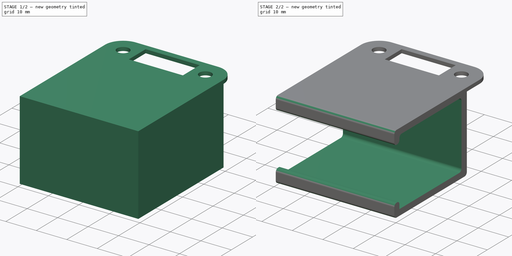
[diagram: build sequence overview — one tinted view per stage of 2, left to right]
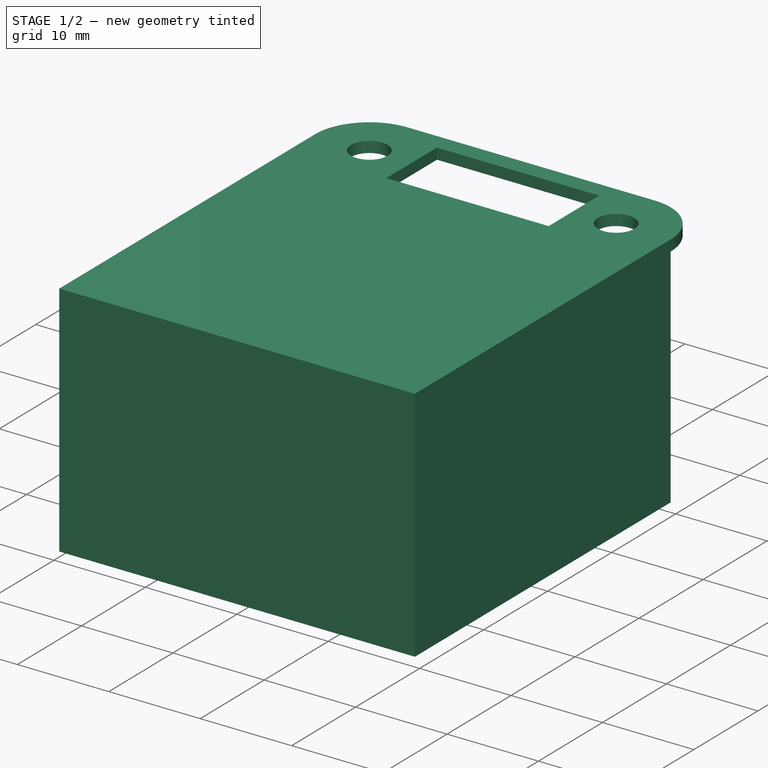
[diagram: stage 1 of 2 — iso view after this stage's code; geometry added in this stage tinted green]
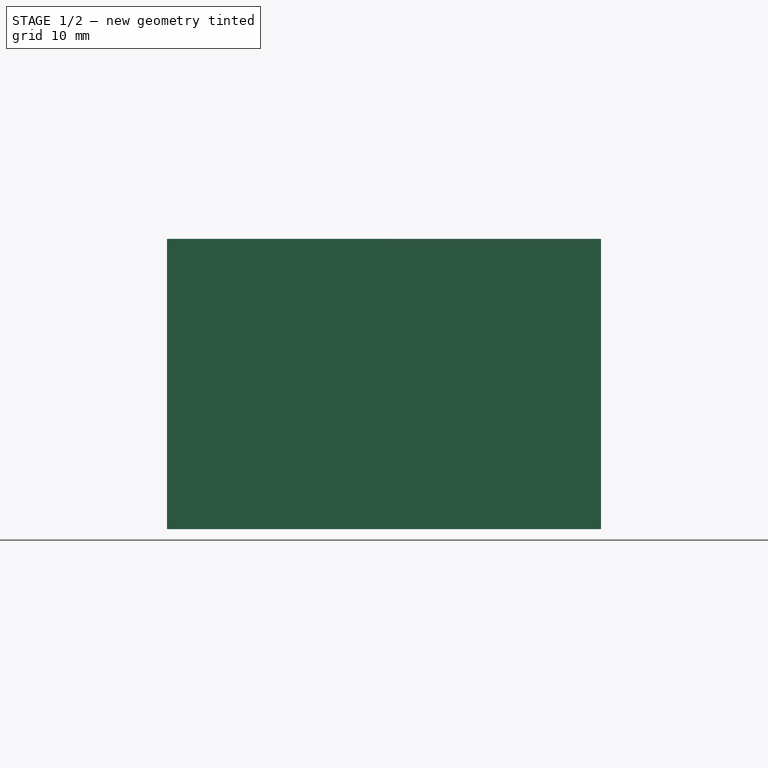
[diagram: stage 1 of 2 — front view after this stage's code; geometry added in this stage tinted green]
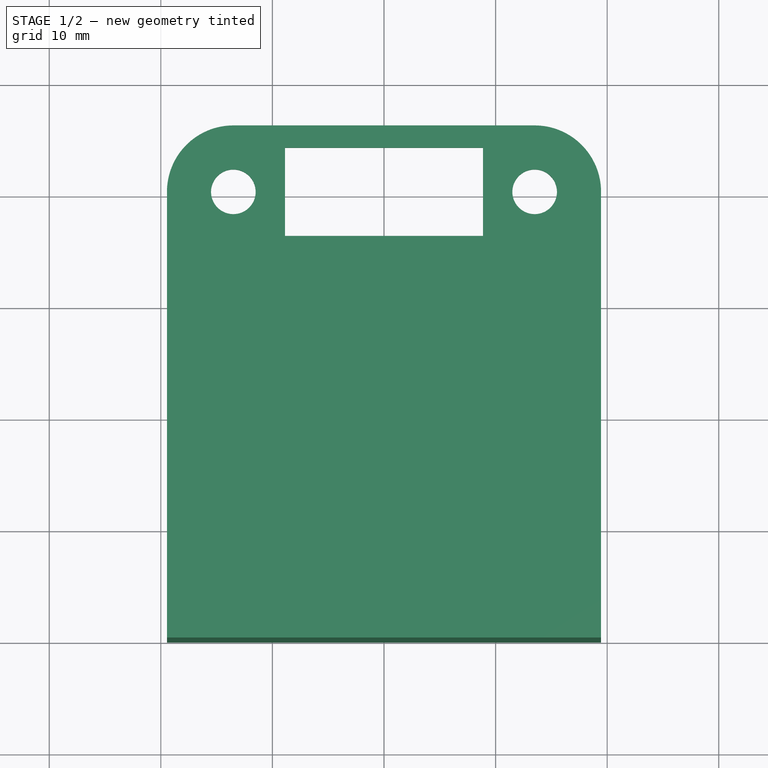
[diagram: stage 1 of 2 — top view after this stage's code; geometry added in this stage tinted green]
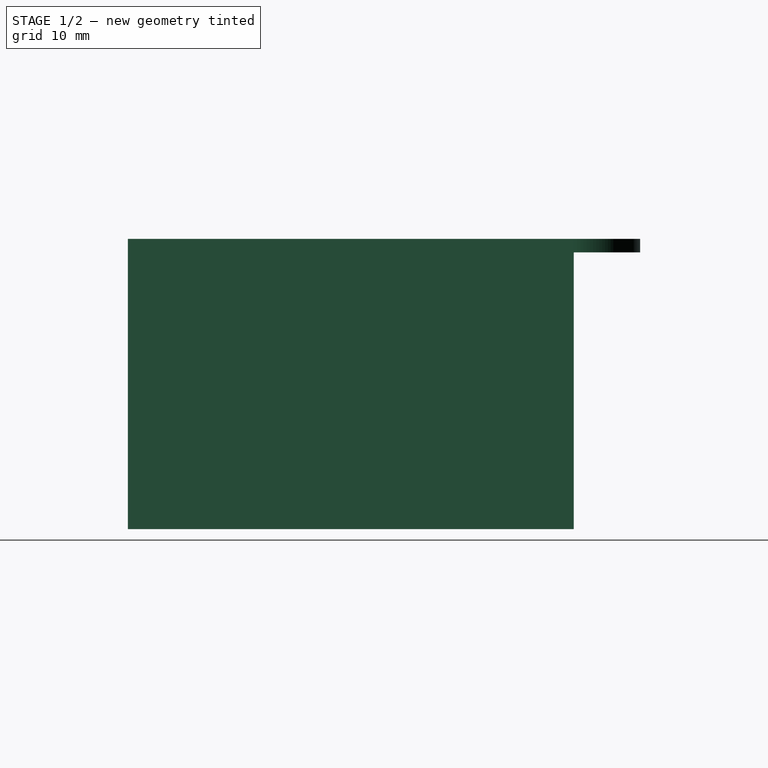
[diagram: stage 1 of 2 — right view after this stage's code; geometry added in this stage tinted green]
FCSTD DOCUMENT  (FreeCAD 1.0R39104 (Git))
Label: HDMI Mount
License: All rights reserved
LicenseURL: http://en.wikipedia.org/wiki/All_rights_reserved
objects: Sketcher::SketchObject×3, PartDesign::Pad×2, PartDesign::Pocket×1, PartDesign::Fillet×1, PartDesign::Body×1
note: 19 computed .brp shape members not serialized (recipe doc carries the construction recipe); baked Part::Feature solids carry a one-line shape summary decoded from their .brp

FEATURE [Sketcher::SketchObject] Sketch
  ArcFitTolerance = 1e-06
  AttachmentSupport = -> [XY_Plane]
  FullyConstrained = true
  MakeInternals = false
  MapMode = 5
  sketch-geometry (13):
    g0: Circle CenterX=-13.5 CenterY=0 CenterZ=0 NormalX=0 NormalY=0 NormalZ=1 AngleXU=0 Radius=2
    g1: Circle CenterX=13.5 CenterY=0 CenterZ=0 NormalX=0 NormalY=0 NormalZ=1 AngleXU=0 Radius=2
    g2: LineSegment [constr] StartX=-13.5 StartY=0 StartZ=0 EndX=13.5 EndY=0 EndZ=0
    g3: LineSegment StartX=-8.875 StartY=-3.95 StartZ=0 EndX=8.875 EndY=-3.95 EndZ=0
    g4: LineSegment StartX=8.875 StartY=-3.95 StartZ=0 EndX=8.875 EndY=3.95 EndZ=0
    g5: LineSegment StartX=8.875 StartY=3.95 StartZ=0 EndX=-8.875 EndY=3.95 EndZ=0
    g6: LineSegment StartX=-8.875 StartY=3.95 StartZ=0 EndX=-8.875 EndY=-3.95 EndZ=0
    g7: GeomPoint [constr] X=0 Y=0 Z=0
    g8: ArcOfCircle CenterX=-13.5 CenterY=0 CenterZ=0 NormalX=0 NormalY=0 NormalZ=1 AngleXU=0 Radius=5.95 StartAngle=1.5708 EndAngle=4.71239
    g9: ArcOfCircle CenterX=13.5 CenterY=0 CenterZ=0 NormalX=0 NormalY=0 NormalZ=1 AngleXU=0 Radius=5.95 StartAngle=4.71239 EndAngle=7.85398
    g10: LineSegment StartX=-13.5 StartY=5.95 StartZ=0 EndX=13.5 EndY=5.95 EndZ=0
    g11: LineSegment StartX=-13.5 StartY=-5.95 StartZ=0 EndX=13.5 EndY=-5.95 EndZ=0
    g12: LineSegment [constr] StartX=-8.875 StartY=3.95 StartZ=0 EndX=-8.875 EndY=5.95 EndZ=0
  constraints (30):
    c: Horizontal(g2)
    c: Symmetric(g2,g2,g-1)
    c: Coincident(g0,g2)
    c: Coincident(g2,g1)
    c: Equal(g0,g1)
    c: Diameter(g1) = 4
    c: Distance(g2) = 27
    c: Coincident(g3,g4)
    c: Coincident(g4,g5)
    c: Coincident(g5,g6)
    c: Coincident(g6,g3)
    c: Horizontal(g3)
    c: Horizontal(g5)
    c: Vertical(g4)
    c: Vertical(g6)
    c: Symmetric(g5,g3,g7)
    c: Distance(g4,g6) = 17.75
    c: Distance(g3,g5) = 7.9
    c: Coincident(g7,g-1)
    c: Tangent(g8,g10) = 1.5708
    c: Tangent(g8,g11) = -1.5708
    c: Tangent(g9,g10) = 1.5708
    c: Tangent(g9,g11) = -1.5708
    c: Equal(g8,g9)
    c: Coincident(g12,g5)
    c: PointOnObject(g12,g10)
    c: Vertical(g12)
    c: Distance(g12) = 2
    c: Coincident(g9,g1)
    c: Coincident(g0,g8)
FEATURE [PartDesign::Pad] Pad
  Direction = (0,0,1)
  Length = 1.2
  Length2 = 10
  Profile = -> Sketch
  ReferenceAxis = -> Sketch [N_Axis]
  Refine = true
  Suppressed = false
  Type = 0
FEATURE [Sketcher::SketchObject] Sketch001
  ArcFitTolerance = 1e-06
  AttachmentSupport = -> [Pad]
  ExternalGeometry = -> [Pad]
  FullyConstrained = true
  MakeInternals = false
  MapMode = 5
  Placement = pos=(0,0,1.2) rot=(0,0,1;0rad)
  sketch-geometry (7):
    g0: LineSegment StartX=-19.45 StartY=-7.669e-13 StartZ=0 EndX=-19.45 EndY=-39.95 EndZ=0
    g1: LineSegment StartX=-19.45 StartY=-39.95 StartZ=0 EndX=19.45 EndY=-39.95 EndZ=0
    g2: LineSegment StartX=19.45 StartY=-39.95 StartZ=0 EndX=19.45 EndY=0 EndZ=0
    g3: ArcOfCircle CenterX=-13.5 CenterY=-8.891e-13 CenterZ=0 NormalX=0 NormalY=0 NormalZ=1 AngleXU=0 Radius=5.95 StartAngle=3.14159 EndAngle=4.71239
    g4: ArcOfCircle CenterX=13.5 CenterY=1e-16 CenterZ=0 NormalX=0 NormalY=0 NormalZ=1 AngleXU=0 Radius=5.95 StartAngle=4.71239 EndAngle=6.28319
    g5: LineSegment StartX=-13.5 StartY=-5.95 StartZ=0 EndX=13.5 EndY=-5.95 EndZ=0
    g6: LineSegment [constr] StartX=-13.5 StartY=-5.95 StartZ=0 EndX=-13.5 EndY=-39.95 EndZ=0
  constraints (17):
    c: Coincident(g1,g0)
    c: Horizontal(g1)
    c: Coincident(g2,g1)
    c: Vertical(g2)
    c: Vertical(g0)
    c: Tangent(g2,g-4) = -1.5708
    c: Tangent(g0,g-3) = -1.5708
    c: Coincident(g3,g0)
    c: Tangent(g3,g-3) = -1.5708
    c: Tangent(g4,g-4) = -1.5708
    c: Coincident(g4,g2)
    c: Coincident(g5,g3)
    c: Coincident(g5,g4)
    c: Coincident(g6,g3)
    c: PointOnObject(g6,g1)
    c: Vertical(g6)
    c: Distance(g6) = 34
FEATURE [PartDesign::Pad] Pad001
  BaseFeature = -> Pad
  Direction = (0,0,1)
  Length = 26
  Length2 = 10
  Profile = -> Sketch001
  ReferenceAxis = -> Sketch001 [N_Axis]
  Refine = true
  Reversed = true
  Suppressed = false
  Type = 0
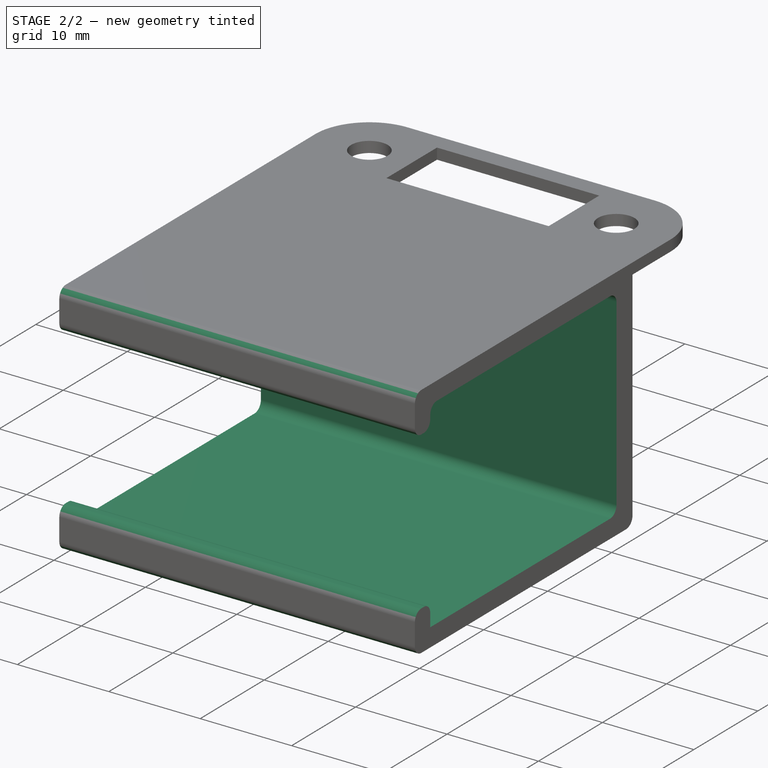
[diagram: stage 2 of 2 — iso view after this stage's code; geometry added in this stage tinted green]
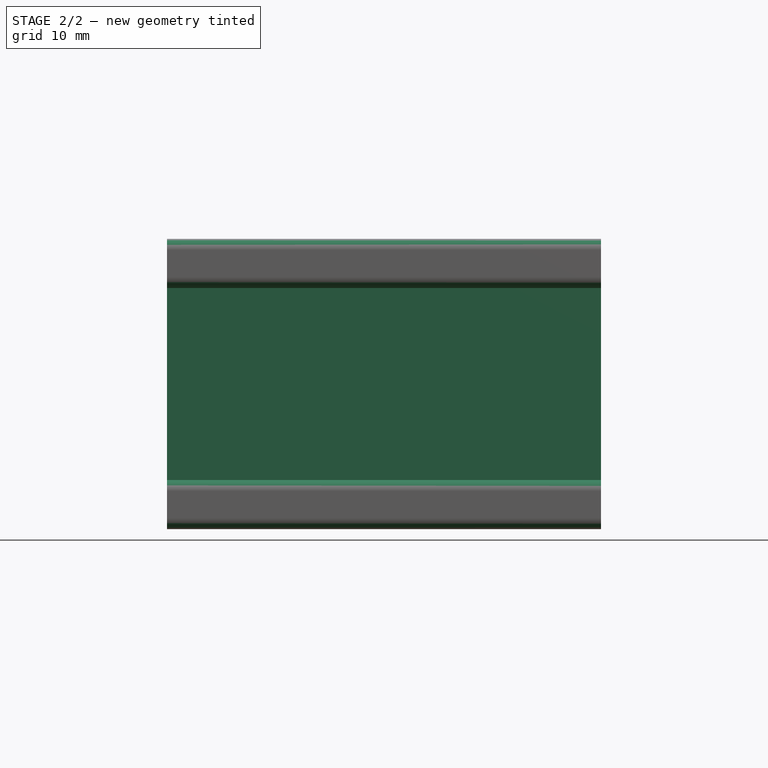
[diagram: stage 2 of 2 — front view after this stage's code; geometry added in this stage tinted green]
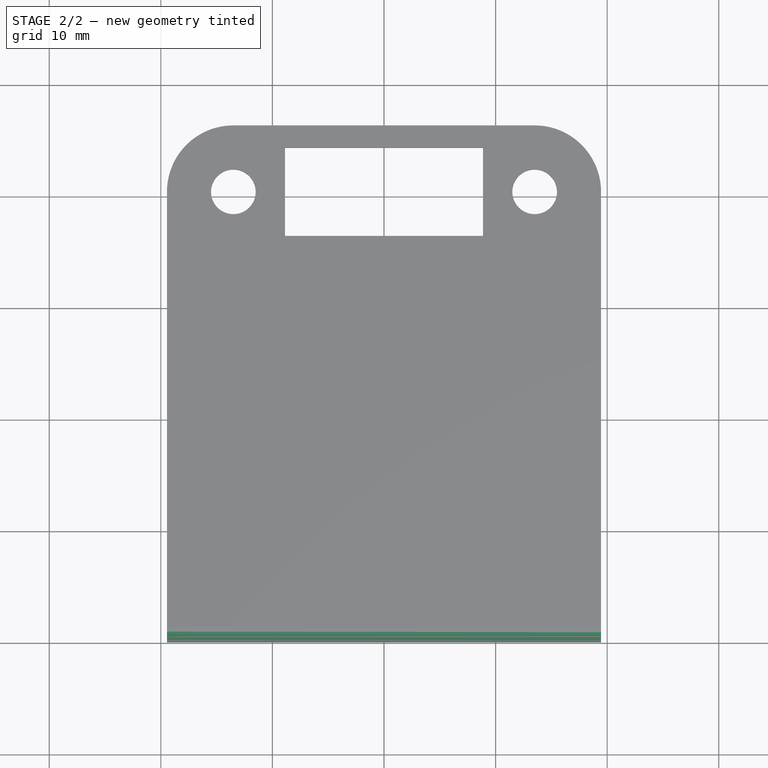
[diagram: stage 2 of 2 — top view after this stage's code; geometry added in this stage tinted green]
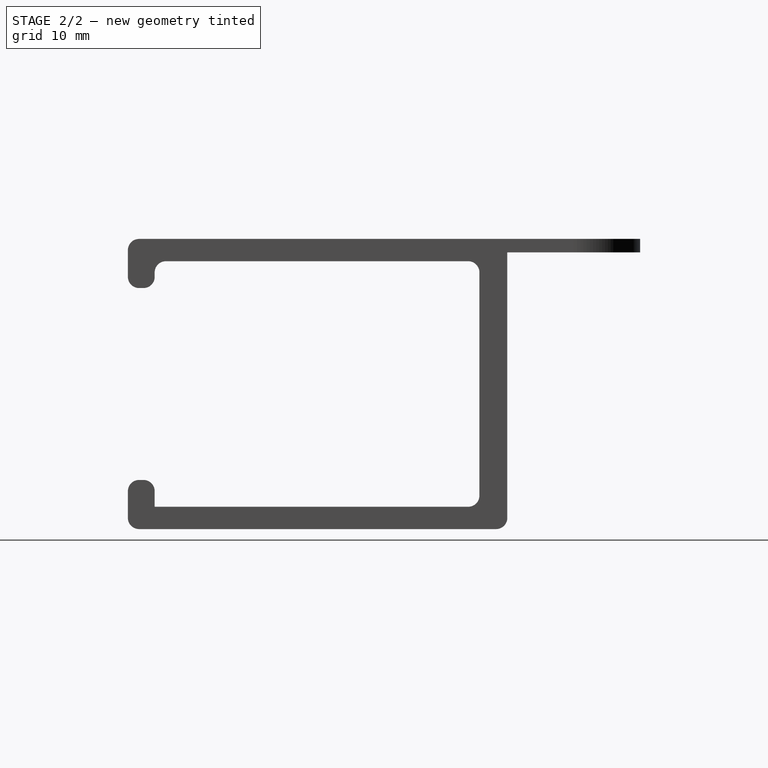
[diagram: stage 2 of 2 — right view after this stage's code; geometry added in this stage tinted green]
FEATURE [Sketcher::SketchObject] Sketch002
  ArcFitTolerance = 1e-06
  AttachmentSupport = -> [Pad001]
  ExternalGeometry = -> [Pad001]
  FullyConstrained = true
  MakeInternals = false
  MapMode = 5
  Placement = pos=(19.45,0,0) rot=(0.57735,0.57735,0.57735;2.0944rad)
  sketch-geometry (16):
    g0: LineSegment StartX=0 StartY=0 StartZ=0 EndX=-5.95 EndY=0 EndZ=0
    g1: LineSegment StartX=-5.95 StartY=0 StartZ=0 EndX=-5.95 EndY=-24.8 EndZ=0
    g2: LineSegment StartX=-5.95 StartY=-24.8 StartZ=0 EndX=0 EndY=-24.8 EndZ=0
    g3: LineSegment StartX=0 StartY=-24.8 StartZ=0 EndX=0 EndY=0 EndZ=0
    g4: LineSegment StartX=-39.95 StartY=-3.2 StartZ=0 EndX=-37.55 EndY=-3.2 EndZ=0
    g5: LineSegment StartX=-37.55 StartY=-3.2 StartZ=0 EndX=-37.55 EndY=-0.8 EndZ=0
    g6: LineSegment StartX=-37.55 StartY=-0.8 StartZ=0 EndX=-8.45 EndY=-0.8 EndZ=0
    g7: LineSegment StartX=-8.45 StartY=-0.8 StartZ=0 EndX=-8.45 EndY=-22.8 EndZ=0
    g8: LineSegment StartX=-8.45 StartY=-22.8 StartZ=0 EndX=-37.55 EndY=-22.8 EndZ=0
    g9: LineSegment StartX=-37.55 StartY=-22.8 StartZ=0 EndX=-37.55 EndY=-20.4 EndZ=0
    g10: LineSegment StartX=-37.55 StartY=-20.4 StartZ=0 EndX=-39.95 EndY=-20.4 EndZ=0
    g11: LineSegment StartX=-39.95 StartY=-20.4 StartZ=0 EndX=-39.95 EndY=-3.2 EndZ=0
    g12: LineSegment [constr] StartX=-37.55 StartY=-3.2 StartZ=0 EndX=-37.55 EndY=-20.4 EndZ=0
    g13: LineSegment [constr] StartX=-39.95 StartY=1.2 StartZ=0 EndX=-39.95 EndY=-3.2 EndZ=0
    g14: LineSegment [constr] StartX=-39.95 StartY=-20.4 StartZ=0 EndX=-39.95 EndY=-24.8 EndZ=0
    g15: LineSegment [constr] StartX=-39.95 StartY=-20.4 StartZ=0 EndX=-8.45 EndY=-20.4 EndZ=0
  constraints (43):
    c: Coincident(g0,g1)
    c: Coincident(g1,g2)
    c: Coincident(g2,g3)
    c: Coincident(g3,g0)
    c: Horizontal(g0)
    c: Horizontal(g2)
    c: Vertical(g1)
    c: Vertical(g3)
    c: Coincident(g0,g-1)
    c: Coincident(g1,g-4)
    c: PointOnObject(g4,g-5)
    c: Horizontal(g4)
    c: Coincident(g4,g5)
    c: Vertical(g5)
    c: Coincident(g5,g6)
    c: Horizontal(g6)
    c: Coincident(g6,g7)
    c: Vertical(g7)
    c: Coincident(g7,g8)
    c: Horizontal(g8)
    c: Coincident(g8,g9)
    c: Vertical(g9)
    c: Coincident(g9,g10)
    c: PointOnObject(g10,g-5)
    c: Horizontal(g10)
    c: Coincident(g10,g11)
    c: Coincident(g11,g4)
    c: Coincident(g12,g4)
    c: Coincident(g12,g9)
    c: Vertical(g12)
    c: Coincident(g13,g-5)
    c: Coincident(g13,g4)
    c: Coincident(g14,g10)
    c: Coincident(g14,g-5)
    c: Equal(g13,g14)
    c: Equal(g9,g5)
    c: Coincident(g15,g10)
    c: PointOnObject(g15,g7)
    c: Horizontal(g15)
    c: Distance(g7) = 22
    c: Distance(g15) = 31.5
    c: Distance(g4) = 2.4
    c: Distance(g5) = 2.4
FEATURE [PartDesign::Pocket] Pocket
  BaseFeature = -> Pad001
  Direction = (-1,0,0)
  Length = 5
  Length2 = 5
  Profile = -> Sketch002
  ReferenceAxis = -> Sketch002 [N_Axis]
  Refine = true
  Suppressed = false
  Type = 1
FEATURE [PartDesign::Fillet] Fillet
  Base = -> Pocket [Edge54,Edge52,Edge50,Edge48,Edge46,Edge58,Edge62,Edge63,Edge60,Edge18]
  BaseFeature = -> Pocket
  Radius = 1
  Refine = true
  SupportTransform = false
  Suppressed = false
  UseAllEdges = false
FEATURE [PartDesign::Body] Body  label="HDMI Mount"
  AllowCompound = false
  Group = -> [Sketch,Pad,Sketch001,Pad001,Sketch002,Pocket,Fillet]
  Origin = -> Origin
  Tip = -> Fillet
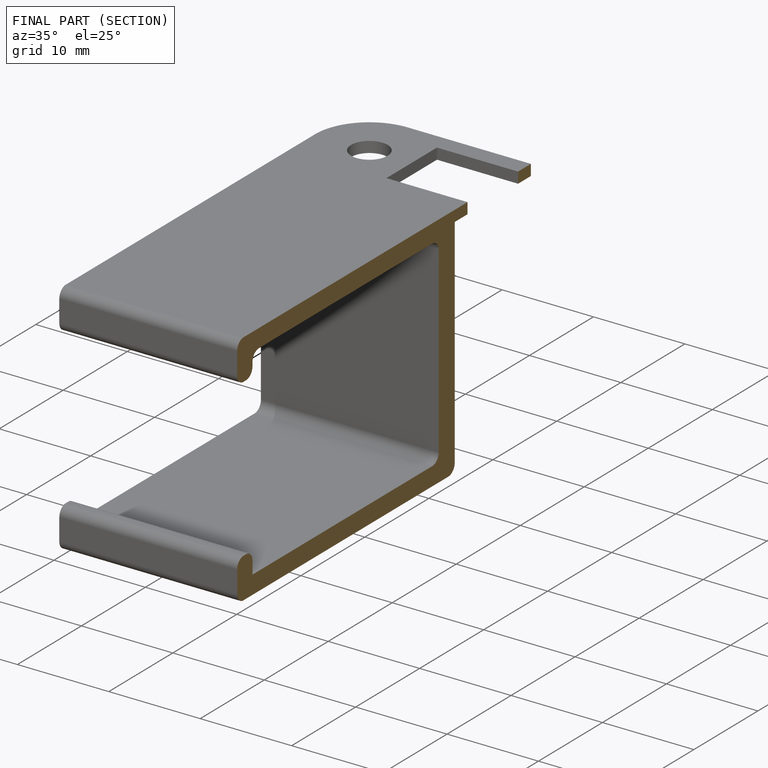
[diagram: finished part — half-section view (interior)]
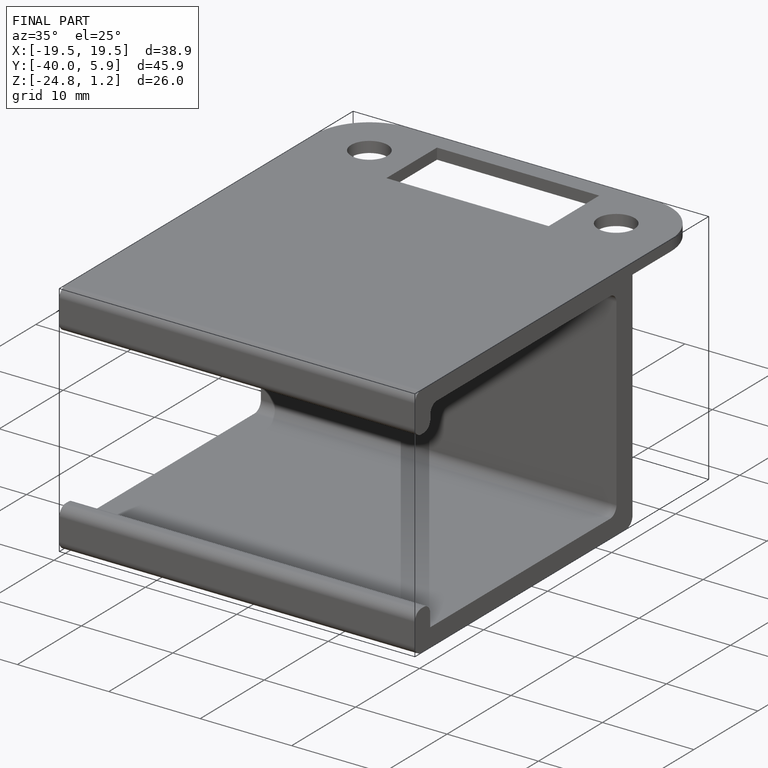
[diagram: finished part — iso view with bounding-box wireframe]
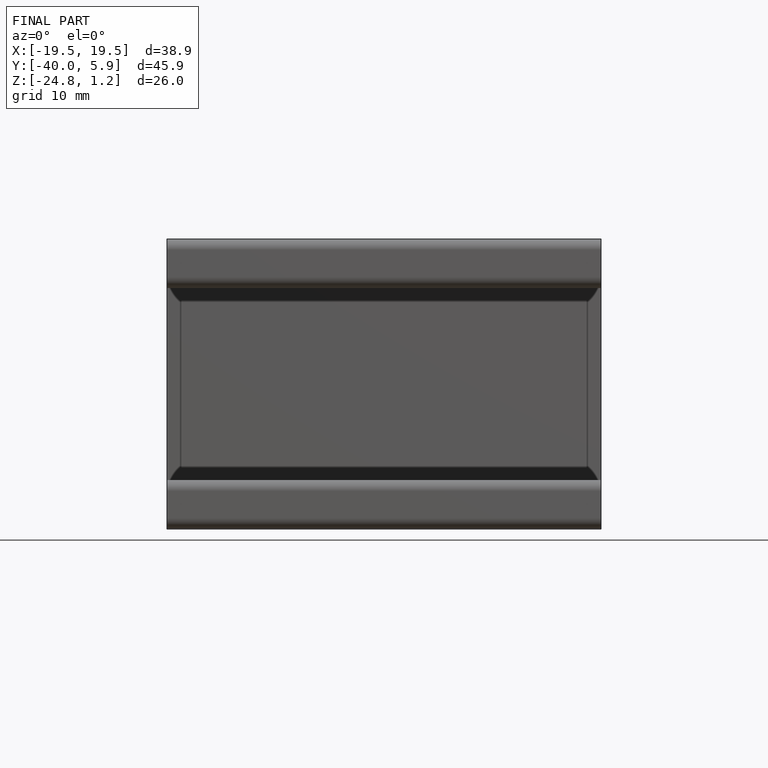
[diagram: finished part — front view with bounding-box wireframe]
